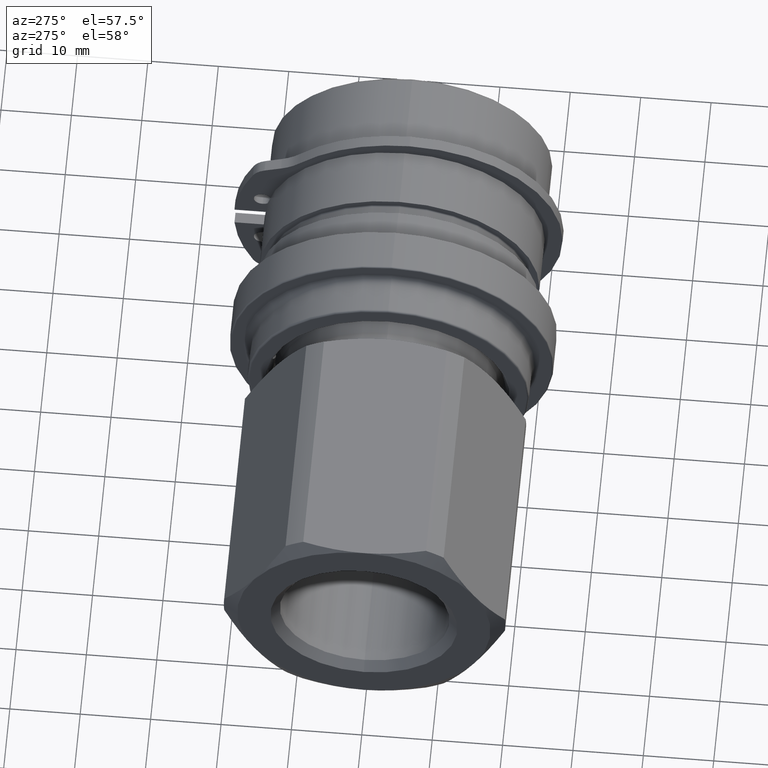
[diagram: clean part render]
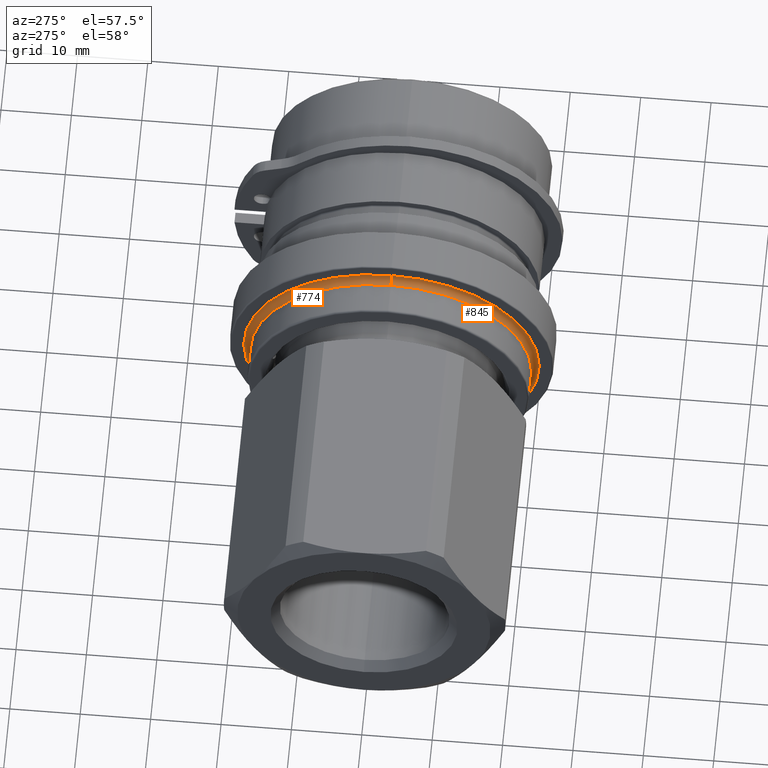
[diagram: same view with one multi-face feature highlighted, each face labeled with its STEP entity id]
A machine part, auxiliary view. The highlighted faces form ONE feature: a constant-radius fillet chain: 2 tangent blend faces with common blend radius 1 mm. The faces share edges in the B-rep.
Their STEP definitions:
[1] entity #774 (Torus):
#561 = EDGE_LOOP ( 'NONE', ( #1249, #1293, #1247, #1107 ) ) ;
#774 = ADVANCED_FACE ( 'NONE', ( #3439 ), #3257, .F. ) ;
#852 = VERTEX_POINT ( 'NONE', #4435 ) ;
#872 = VERTEX_POINT ( 'NONE', #4360 ) ;
#893 = VERTEX_POINT ( 'NONE', #4296 ) ;
#982 = VERTEX_POINT ( 'NONE', #4047 ) ;
#1044 = AXIS2_PLACEMENT_3D ( 'NONE', #3669, #3737, #3893 ) ;
#1107 = ORIENTED_EDGE ( 'NONE', *, *, #1929, .F. ) ;
#1247 = ORIENTED_EDGE ( 'NONE', *, *, #3545, .T. ) ;
#1249 = ORIENTED_EDGE ( 'NONE', *, *, #1898, .F. ) ;
#1293 = ORIENTED_EDGE ( 'NONE', *, *, #1957, .F. ) ;
#1406 = DIRECTION ( 'NONE',  ( 1.000000000000000000, 0.0000000000000000000, 0.0000000000000000000 ) ) ;
#1500 = DIRECTION ( 'NONE',  ( -1.000000000000000000, -0.0000000000000000000, -0.0000000000000000000 ) ) ;
#1551 = DIRECTION ( 'NONE',  ( 0.0000000000000000000, 0.0000000000000000000, 1.000000000000000000 ) ) ;
#1565 = DIRECTION ( 'NONE',  ( 0.0000000000000000000, 0.0000000000000000000, 1.000000000000000000 ) ) ;
#1632 = CARTESIAN_POINT ( 'NONE',  ( 17.24999999999999600, 4.470713197007353100E-016, 2.582013848347336000E-015 ) ) ;
#1634 = CARTESIAN_POINT ( 'NONE',  ( 18.24999999999999600, 4.470713197007353100E-016, 2.582013848347336000E-015 ) ) ;
#1898 = EDGE_CURVE ( 'NONE', #982, #893, #3076, .T. ) ;
#1929 = EDGE_CURVE ( 'NONE', #893, #872, #3007, .T. ) ;
#1957 = EDGE_CURVE ( 'NONE', #852, #982, #3136, .T. ) ;
#2191 = CIRCLE ( 'NONE', #1044, 1.000000000000000900 ) ;
#2649 = AXIS2_PLACEMENT_3D ( 'NONE', #4091, #4090, #4089 ) ;
#2696 = AXIS2_PLACEMENT_3D ( 'NONE', #1634, #1406, #1565 ) ;
#2807 = AXIS2_PLACEMENT_3D ( 'NONE', #1632, #1500, #1551 ) ;
#2897 = AXIS2_PLACEMENT_3D ( 'NONE', #4305, #4420, #4382 ) ;
#3007 = CIRCLE ( 'NONE', #2696, 21.00000000000000000 ) ;
#3076 = CIRCLE ( 'NONE', #2649, 1.000000000000000900 ) ;
#3136 = CIRCLE ( 'NONE', #2807, 20.00000000000000000 ) ;
#3257 = TOROIDAL_SURFACE ( 'NONE', #2897, 21.00000000000000000, 1.000000000000000000 ) ;
#3439 = FACE_OUTER_BOUND ( 'NONE', #561, .T. ) ;
#3545 = EDGE_CURVE ( 'NONE', #852, #872, #2191, .T. ) ;
#3669 = CARTESIAN_POINT ( 'NONE',  ( 17.24999999999999600, 4.470713197007353100E-016, 21.00000000000000400 ) ) ;
#3737 = DIRECTION ( 'NONE',  ( 0.0000000000000000000, -1.000000000000000000, 0.0000000000000000000 ) ) ;
#3893 = DIRECTION ( 'NONE',  ( 0.0000000000000000000, 0.0000000000000000000, -1.000000000000000000 ) ) ;
#4047 = CARTESIAN_POINT ( 'NONE',  ( 17.24999999999999600, 2.957597257952809200E-015, -19.99999999999999600 ) ) ;
#4089 = DIRECTION ( 'NONE',  ( 0.0000000000000000000, -1.224646799147353500E-016, 1.000000000000000000 ) ) ;
#4090 = DIRECTION ( 'NONE',  ( -0.0000000000000000000, 1.000000000000000000, 1.224646799147353200E-016 ) ) ;
#4091 = CARTESIAN_POINT ( 'NONE',  ( 17.24999999999999600, 3.018829597910177200E-015, -20.99999999999999600 ) ) ;
#4296 = CARTESIAN_POINT ( 'NONE',  ( 18.24999999999999600, 3.018829597910177600E-015, -20.99999999999999600 ) ) ;
#4305 = CARTESIAN_POINT ( 'NONE',  ( 17.24999999999999600, 4.470713197007353100E-016, 2.582013848347336000E-015 ) ) ;
#4360 = CARTESIAN_POINT ( 'NONE',  ( 18.24999999999999600, 4.470713197007353100E-016, 21.00000000000000400 ) ) ;
#4382 = DIRECTION ( 'NONE',  ( 0.0000000000000000000, 0.0000000000000000000, 1.000000000000000000 ) ) ;
#4420 = DIRECTION ( 'NONE',  ( -1.000000000000000000, -0.0000000000000000000, -0.0000000000000000000 ) ) ;
#4435 = CARTESIAN_POINT ( 'NONE',  ( 17.24999999999999600, 4.470713197007353100E-016, 20.00000000000000400 ) ) ;
[2] entity #845 (Torus):
#464 = EDGE_LOOP ( 'NONE', ( #1277, #1076, #1322, #1274 ) ) ;
#845 = ADVANCED_FACE ( 'NONE', ( #3094 ), #2980, .F. ) ;
#852 = VERTEX_POINT ( 'NONE', #4435 ) ;
#872 = VERTEX_POINT ( 'NONE', #4360 ) ;
#893 = VERTEX_POINT ( 'NONE', #4296 ) ;
#982 = VERTEX_POINT ( 'NONE', #4047 ) ;
#1044 = AXIS2_PLACEMENT_3D ( 'NONE', #3669, #3737, #3893 ) ;
#1076 = ORIENTED_EDGE ( 'NONE', *, *, #1898, .T. ) ;
#1274 = ORIENTED_EDGE ( 'NONE', *, *, #3545, .F. ) ;
#1277 = ORIENTED_EDGE ( 'NONE', *, *, #1916, .F. ) ;
#1322 = ORIENTED_EDGE ( 'NONE', *, *, #1974, .F. ) ;
#1442 = CARTESIAN_POINT ( 'NONE',  ( 18.24999999999999600, 4.470713197007353100E-016, 2.582013848347336000E-015 ) ) ;
#1524 = DIRECTION ( 'NONE',  ( 1.000000000000000000, 0.0000000000000000000, 0.0000000000000000000 ) ) ;
#1526 = DIRECTION ( 'NONE',  ( 0.0000000000000000000, 0.0000000000000000000, 1.000000000000000000 ) ) ;
#1898 = EDGE_CURVE ( 'NONE', #982, #893, #3076, .T. ) ;
#1916 = EDGE_CURVE ( 'NONE', #982, #852, #3115, .T. ) ;
#1974 = EDGE_CURVE ( 'NONE', #872, #893, #3058, .T. ) ;
#2191 = CIRCLE ( 'NONE', #1044, 1.000000000000000900 ) ;
#2649 = AXIS2_PLACEMENT_3D ( 'NONE', #4091, #4090, #4089 ) ;
#2687 = AXIS2_PLACEMENT_3D ( 'NONE', #1442, #1524, #1526 ) ;
#2721 = AXIS2_PLACEMENT_3D ( 'NONE', #4187, #4206, #4204 ) ;
#2777 = AXIS2_PLACEMENT_3D ( 'NONE', #4245, #4242, #4244 ) ;
#2980 = TOROIDAL_SURFACE ( 'NONE', #2721, 21.00000000000000000, 1.000000000000000000 ) ;
#3058 = CIRCLE ( 'NONE', #2687, 21.00000000000000000 ) ;
#3076 = CIRCLE ( 'NONE', #2649, 1.000000000000000900 ) ;
#3094 = FACE_OUTER_BOUND ( 'NONE', #464, .T. ) ;
#3115 = CIRCLE ( 'NONE', #2777, 20.00000000000000000 ) ;
#3545 = EDGE_CURVE ( 'NONE', #852, #872, #2191, .T. ) ;
#3669 = CARTESIAN_POINT ( 'NONE',  ( 17.24999999999999600, 4.470713197007353100E-016, 21.00000000000000400 ) ) ;
#3737 = DIRECTION ( 'NONE',  ( 0.0000000000000000000, -1.000000000000000000, 0.0000000000000000000 ) ) ;
#3893 = DIRECTION ( 'NONE',  ( 0.0000000000000000000, 0.0000000000000000000, -1.000000000000000000 ) ) ;
#4047 = CARTESIAN_POINT ( 'NONE',  ( 17.24999999999999600, 2.957597257952809200E-015, -19.99999999999999600 ) ) ;
#4089 = DIRECTION ( 'NONE',  ( 0.0000000000000000000, -1.224646799147353500E-016, 1.000000000000000000 ) ) ;
#4090 = DIRECTION ( 'NONE',  ( -0.0000000000000000000, 1.000000000000000000, 1.224646799147353200E-016 ) ) ;
#4091 = CARTESIAN_POINT ( 'NONE',  ( 17.24999999999999600, 3.018829597910177200E-015, -20.99999999999999600 ) ) ;
#4187 = CARTESIAN_POINT ( 'NONE',  ( 17.24999999999999600, 4.470713197007353100E-016, 2.582013848347336000E-015 ) ) ;
#4204 = DIRECTION ( 'NONE',  ( 0.0000000000000000000, 0.0000000000000000000, 1.000000000000000000 ) ) ;
#4206 = DIRECTION ( 'NONE',  ( -1.000000000000000000, -0.0000000000000000000, -0.0000000000000000000 ) ) ;
#4242 = DIRECTION ( 'NONE',  ( -1.000000000000000000, -0.0000000000000000000, -0.0000000000000000000 ) ) ;
#4244 = DIRECTION ( 'NONE',  ( 0.0000000000000000000, 0.0000000000000000000, 1.000000000000000000 ) ) ;
#4245 = CARTESIAN_POINT ( 'NONE',  ( 17.24999999999999600, 4.470713197007353100E-016, 2.582013848347336000E-015 ) ) ;
#4296 = CARTESIAN_POINT ( 'NONE',  ( 18.24999999999999600, 3.018829597910177600E-015, -20.99999999999999600 ) ) ;
#4360 = CARTESIAN_POINT ( 'NONE',  ( 18.24999999999999600, 4.470713197007353100E-016, 21.00000000000000400 ) ) ;
#4435 = CARTESIAN_POINT ( 'NONE',  ( 17.24999999999999600, 4.470713197007353100E-016, 20.00000000000000400 ) ) ;